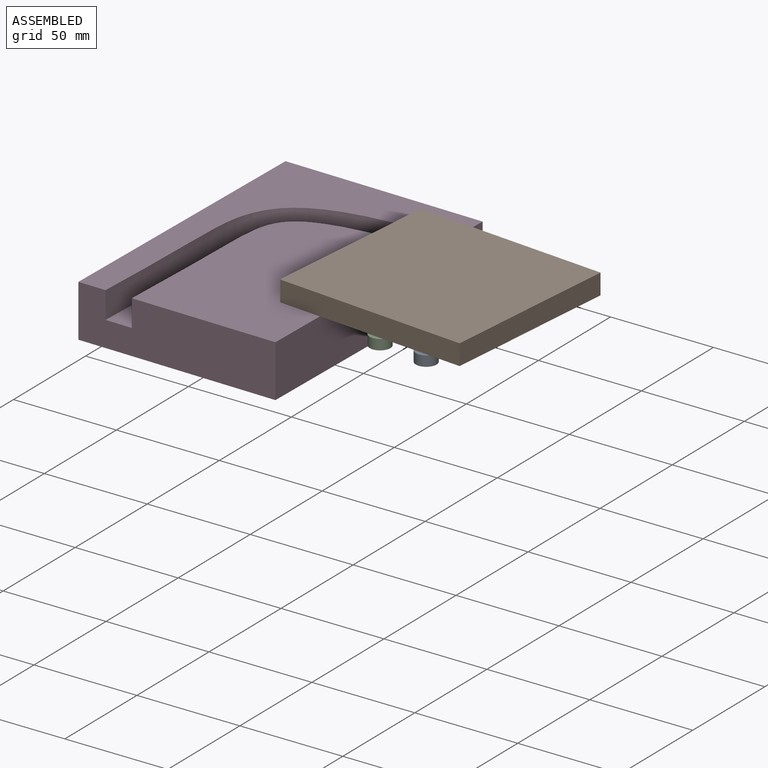
[diagram: assembled view]
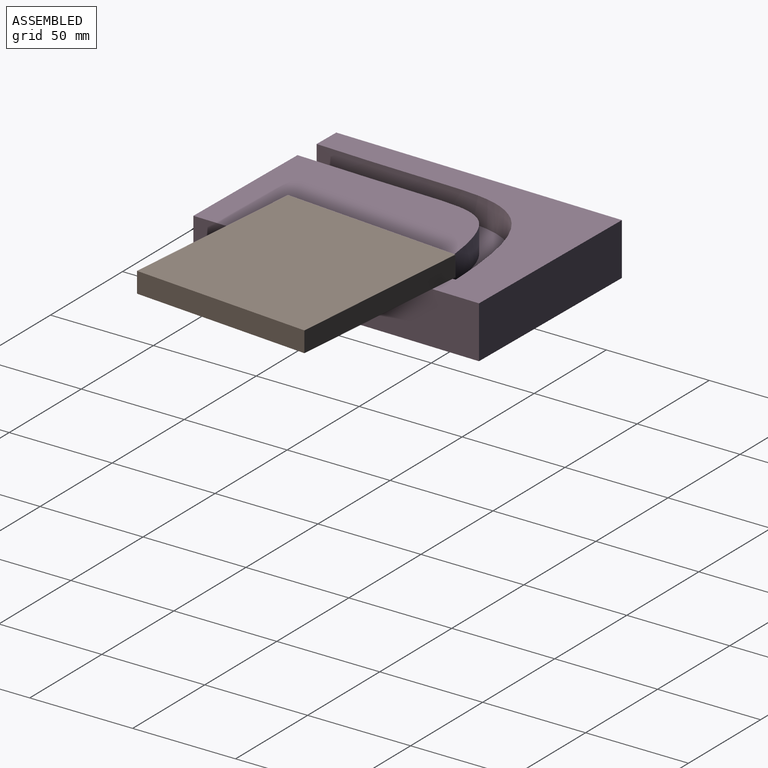
[diagram: assembled view, second angle]
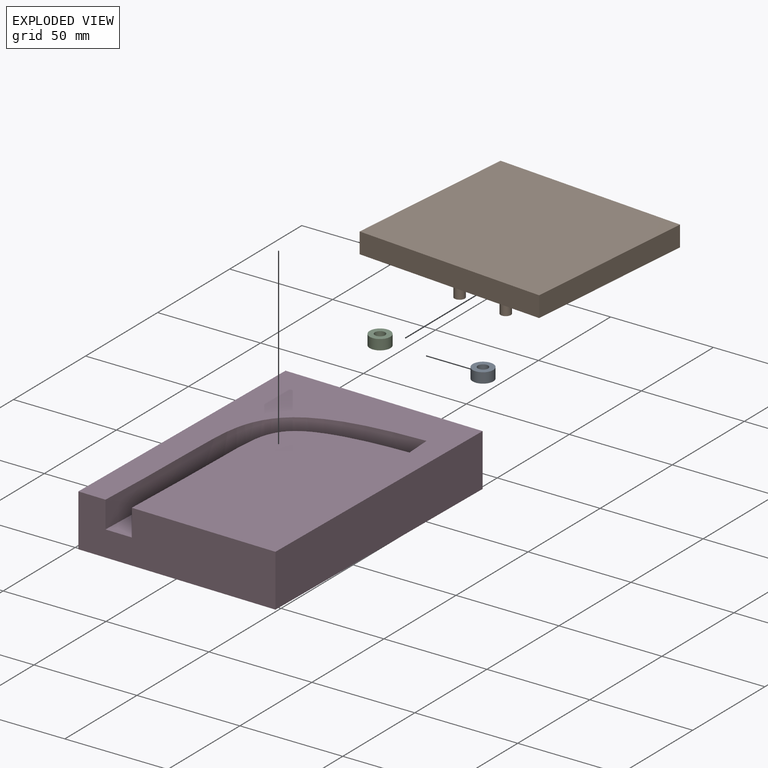
[diagram: exploded view]
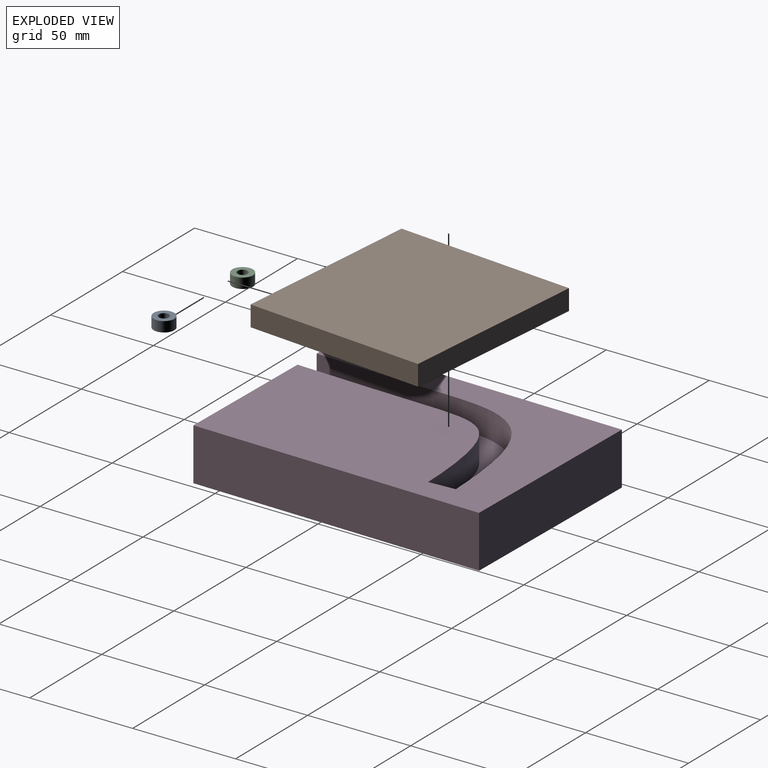
[diagram: exploded view, second angle]
ASSEMBLY  parts=4 mates=3
PART A: 4 faces, bbox 10x10x5 mm
  f0: cylinder r=2.5mm len=5mm, axis (0,0,-1), area 78.5mm2, adj f2,f3
  f1: cylinder r=5mm len=10mm, axis (0,0,-1), area 157.1mm2, adj f2,f3
  f2: plane 10x10mm, normal (0,0,1), area 58.9mm2, adj f0,f1
  f3: plane 10x10mm, normal (0,0,-1), area 58.9mm2, adj f0,f1
PART B: 10 faces, bbox 93.4x87.1x20.4 mm
  f0: plane 93.35x10mm, normal (0,-1,0), area 933.5mm2, adj f1,f3,f4,f5
  f1: plane 87.08x10mm, normal (1,0,0), area 870.8mm2, adj f0,f2,f4,f5
  f2: plane 93.35x10mm, normal (0,1,0), area 933.5mm2, adj f1,f3,f4,f5
  f3: plane 87.08x10mm, normal (-1,0,0), area 870.8mm2, adj f0,f2,f4,f5
  f4: plane 93.35x87.08mm, normal (0,0,1), area 8128.5mm2, adj f0,f1,f2,f3
  f5: plane 93.35x87.08mm, normal (0,0,-1), area 8089.3mm2, adj f0,f1,f2,f3,f6,f8
  f6: cylinder r=2.5mm len=10.4mm, axis (0,0,-1), area 163.4mm2, adj f5,f7
  f7: plane 5x5mm, normal (0,0,-1), area 19.6mm2, adj f6
  f8: cylinder r=2.5mm len=10.4mm, axis (0,0,-1), area 163.4mm2, adj f5,f9
  f9: plane 5x5mm, normal (0,0,-1), area 19.6mm2, adj f8
PART C: 4 faces, bbox 10x10x5 mm
  f0: cylinder r=2.5mm len=5mm, axis (0,0,-1), area 78.5mm2, adj f2,f3
  f1: cylinder r=5mm len=10mm, axis (0,0,-1), area 157.1mm2, adj f2,f3
  f2: plane 10x10mm, normal (0,0,1), area 58.9mm2, adj f0,f1
  f3: plane 10x10mm, normal (0,0,-1), area 58.9mm2, adj f0,f1
PART D: 10 faces, bbox 96.9x140.4x31.9 mm
  f0: plane 96.87x25.4mm, normal (0,-1,0), area 2291.6mm2, adj f1,f3,f4,f5,f7,f8,f9
  f1: plane 140.41x25.4mm, normal (1,0,0), area 3566.4mm2, adj f0,f2,f4,f5
  f2: plane 96.87x25.4mm, normal (0,1,0), area 2460.6mm2, adj f1,f3,f4,f5
  f3: plane 140.41x25.4mm, normal (-1,0,0), area 3566.4mm2, adj f0,f2,f4,f5
  f4: plane 140.41x96.87mm, normal (0,0,1), area 11539.4mm2, adj f0,f1,f2,f3,f6,f8,f9
  f5: plane 140.41x96.87mm, normal (0,0,-1), area 13602mm2, adj f0,f1,f2,f3
  f6: plane 13.05x12.91mm, normal (-1,-0.08,0), area 169mm2, adj f4,f7,f8,f9
  f7: plane 119.84x71.89mm, normal (0,0,1), area 2062.8mm2, adj f0,f6,f8,f9
  f8: bspline ~119.84x70.9mm, area 2207.2mm2, adj f0,f4,f6,f7
  f9: bspline ~106.94x58.94mm, area 1954.9mm2, adj f0,f4,f6,f7
PLACE A t=(146.62,-47.69,50.9)mm
PLACE B rot(axis=(0,0,1),174.9deg) t=(240.31,203.54,35.9)mm
PLACE C t=(146.71,-45.56,50.9)mm
PLACE D rot(axis=(0,0,-1),1deg) t=(56.26,43.28,35.9)mm
MATE revolute A.f0 <-> B.f6  axis (0,0,-1) through (199.89,79.47,50.9)mm
MATE planar D.f4 <-> B.f5  axis (0,0,1) through (108.46,112.31,61.3)mm
MATE revolute C.f0 <-> B.f8  axis (0,0,-1) through (175.98,81.6,50.9)mm
